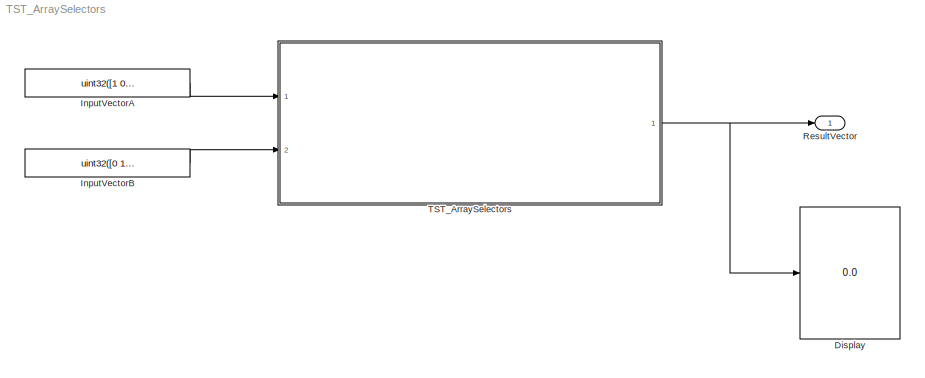
MODEL TST_ArraySelectors
KIND model
BLOCK [Display] Display
  Decimation = 1
  Ports = [1]
  SID = 51
BLOCK [Constant] InputVectorA
  SID = 52
  Value = uint32([1 0 1 1 0 0])
BLOCK [Constant] InputVectorB
  SID = 53
  Value = uint32([0 1 1 1])
BLOCK [Outport] ResultVector
  IconDisplay = Port number
  SID = 25
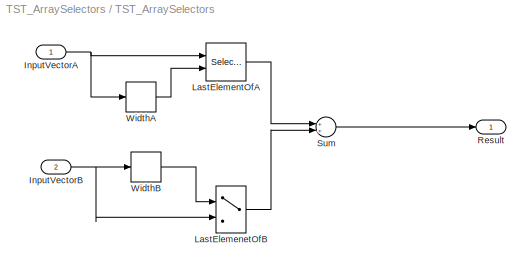
BLOCK [SubSystem] TST_ArraySelectors
  Ports = [2, 1]
  RequestExecContextInheritance = off
  SID = 2
  TreatAsAtomicUnit = on
BLOCK [Inport] TST_ArraySelectors/InputVectorA
  IconDisplay = Port number
  SID = 47
BLOCK [Inport] TST_ArraySelectors/InputVectorB
  IconDisplay = Port number
  Port = 2
  SID = 48
BLOCK [MultiPortSwitch] TST_ArraySelectors/LastElemenetOfB
  InputSameDT = off
  Inputs = 1
  Ports = [2, 1]
  SID = 56
  SaturateOnIntegerOverflow = off
BLOCK [Selector] TST_ArraySelectors/LastElementOfA
  IndexOptions = Index vector (port)
  Indices = [1 3]
  OutputSizes = 1
  Ports = [2, 1]
  SID = 58
BLOCK [Outport] TST_ArraySelectors/Result
  IconDisplay = Port number
  SID = 49
BLOCK [Sum] TST_ArraySelectors/Sum
  InputSameDT = off
  OutDataTypeStr = Inherit: Inherit via internal rule
  Ports = [2, 1]
  SID = 59
  SaturateOnIntegerOverflow = off
BLOCK [Width] TST_ArraySelectors/WidthA
  SID = 54
BLOCK [Width] TST_ArraySelectors/WidthB
  SID = 55
LINE InputVectorA:1 -> TST_ArraySelectors:1
LINE InputVectorB:1 -> TST_ArraySelectors:2
NET TST_ArraySelectors/InputVectorA:1 -> TST_ArraySelectors/LastElementOfA:1, TST_ArraySelectors/WidthA:1
NET TST_ArraySelectors/InputVectorB:1 -> TST_ArraySelectors/LastElemenetOfB:2, TST_ArraySelectors/WidthB:1
LINE TST_ArraySelectors/LastElemenetOfB:1 -> TST_ArraySelectors/Sum:2
LINE TST_ArraySelectors/LastElementOfA:1 -> TST_ArraySelectors/Sum:1
LINE TST_ArraySelectors/Sum:1 -> TST_ArraySelectors/Result:1
LINE TST_ArraySelectors/WidthA:1 -> TST_ArraySelectors/LastElementOfA:2
LINE TST_ArraySelectors/WidthB:1 -> TST_ArraySelectors/LastElemenetOfB:1
NET TST_ArraySelectors:1 -> Display:1, ResultVector:1
note: NET lines group one-source signal fan-out (src -> all destinations, sorted); 1:1 wires keep LINE
